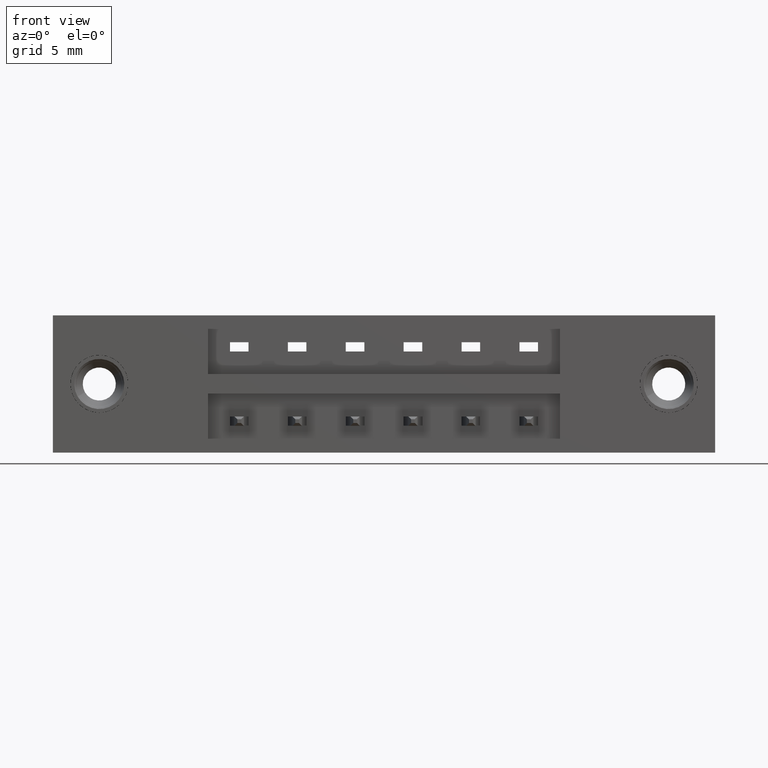
[diagram: clean part render]
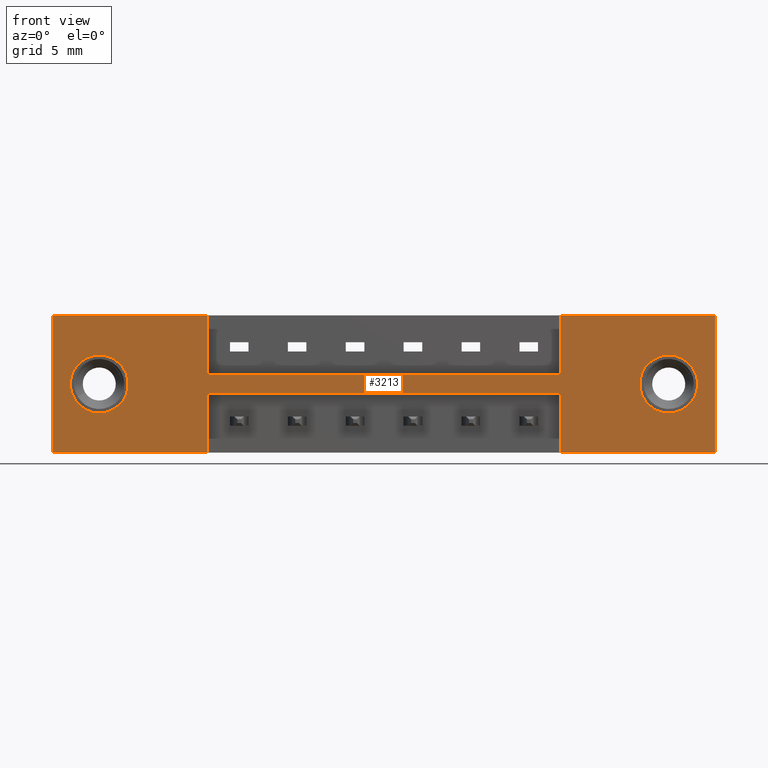
[diagram: same view with one face highlighted and labeled with its STEP entity id]
A machine part, front view. The second image highlights one B-rep face of the part: STEP entity #3213.
In plain terms, the highlighted planar face has unit normal (0, -1, 0).
Its self-contained STEP definition (entity closure, byte-faithful):
#3 = VERTEX_POINT ( 'NONE', #5428 ) ;
#110 = DIRECTION ( 'NONE',  ( -0.0000000000000000000, -0.0000000000000000000, -1.000000000000000000 ) ) ;
#320 = EDGE_LOOP ( 'NONE', ( #9035, #9163 ) ) ;
#383 = CIRCLE ( 'NONE', #9207, 0.07800000000000001400 ) ;
#430 = CIRCLE ( 'NONE', #7148, 0.07800000000000009700 ) ;
#486 = VECTOR ( 'NONE', #527, 39.37007874015748100 ) ;
#527 = DIRECTION ( 'NONE',  ( 1.000000000000000000, 0.0000000000000000000, 0.0000000000000000000 ) ) ;
#632 = VERTEX_POINT ( 'NONE', #3649 ) ;
#641 = EDGE_CURVE ( 'NONE', #7137, #4491, #4251, .T. ) ;
#644 = DIRECTION ( 'NONE',  ( 1.000000000000000000, 0.0000000000000000000, 0.0000000000000000000 ) ) ;
#824 = ORIENTED_EDGE ( 'NONE', *, *, #2777, .F. ) ;
#831 = ORIENTED_EDGE ( 'NONE', *, *, #4075, .F. ) ;
#845 = DIRECTION ( 'NONE',  ( -1.000000000000000000, -0.0000000000000000000, -0.0000000000000000000 ) ) ;
#888 = EDGE_CURVE ( 'NONE', #3, #2256, #3888, .T. ) ;
#891 = CARTESIAN_POINT ( 'NONE',  ( 0.4174999999999999800, 0.0000000000000000000, -0.1585000000000000300 ) ) ;
#898 = LINE ( 'NONE', #5798, #4622 ) ;
#905 = DIRECTION ( 'NONE',  ( -0.0000000000000000000, -0.0000000000000000000, 1.000000000000000000 ) ) ;
#1065 = EDGE_CURVE ( 'NONE', #8828, #2219, #4478, .T. ) ;
#1244 = CARTESIAN_POINT ( 'NONE',  ( 1.366499999999999800, 0.0000000000000000000, -0.2114999999999999900 ) ) ;
#1262 = ORIENTED_EDGE ( 'NONE', *, *, #3703, .F. ) ;
#1265 = CARTESIAN_POINT ( 'NONE',  ( 0.0000000000000000000, 0.0000000000000000000, 0.0000000000000000000 ) ) ;
#1443 = CARTESIAN_POINT ( 'NONE',  ( 0.4174999999999997000, 0.0000000000000000000, -0.2114999999999999900 ) ) ;
#1501 = CARTESIAN_POINT ( 'NONE',  ( 0.4174999999999997000, 0.0000000000000000000, -0.3700000000000000000 ) ) ;
#1567 = CARTESIAN_POINT ( 'NONE',  ( 1.366499999999999800, 0.0000000000000000000, -0.1585000000000000300 ) ) ;
#1628 = DIRECTION ( 'NONE',  ( -1.000000000000000000, -0.0000000000000000000, -0.0000000000000000000 ) ) ;
#1656 = CARTESIAN_POINT ( 'NONE',  ( 1.366499999999999800, 0.0000000000000000000, -0.1585000000000000300 ) ) ;
#1794 = LINE ( 'NONE', #3901, #3500 ) ;
#1806 = FACE_BOUND ( 'NONE', #320, .T. ) ;
#1818 = CARTESIAN_POINT ( 'NONE',  ( 0.1250000000000001900, 0.0000000000000000000, -0.1849999999999987200 ) ) ;
#1871 = VECTOR ( 'NONE', #845, 39.37007874015748100 ) ;
#1917 = DIRECTION ( 'NONE',  ( 0.0000000000000000000, -0.0000000000000000000, -1.000000000000000000 ) ) ;
#2117 = CARTESIAN_POINT ( 'NONE',  ( 0.0000000000000000000, 0.0000000000000000000, -0.3700000000000000000 ) ) ;
#2123 = EDGE_CURVE ( 'NONE', #6392, #4271, #383, .T. ) ;
#2219 = VERTEX_POINT ( 'NONE', #2734 ) ;
#2233 = VECTOR ( 'NONE', #4876, 39.37007874015748100 ) ;
#2245 = EDGE_CURVE ( 'NONE', #4491, #5558, #7061, .T. ) ;
#2256 = VERTEX_POINT ( 'NONE', #4129 ) ;
#2357 = LINE ( 'NONE', #5850, #7959 ) ;
#2489 = VECTOR ( 'NONE', #4100, 39.37007874015748100 ) ;
#2546 = ORIENTED_EDGE ( 'NONE', *, *, #8137, .F. ) ;
#2586 = CARTESIAN_POINT ( 'NONE',  ( 1.366499999999999800, 0.0000000000000000000, -0.2114999999999999900 ) ) ;
#2610 = EDGE_CURVE ( 'NONE', #5558, #6348, #6078, .T. ) ;
#2734 = CARTESIAN_POINT ( 'NONE',  ( 0.0000000000000000000, 0.0000000000000000000, 0.0000000000000000000 ) ) ;
#2777 = EDGE_CURVE ( 'NONE', #2219, #632, #4468, .T. ) ;
#2808 = ORIENTED_EDGE ( 'NONE', *, *, #1065, .F. ) ;
#2862 = ORIENTED_EDGE ( 'NONE', *, *, #888, .T. ) ;
#2949 = DIRECTION ( 'NONE',  ( 0.0000000000000000000, 1.000000000000000000, -0.0000000000000000000 ) ) ;
#2995 = CARTESIAN_POINT ( 'NONE',  ( 1.784000000000000500, 0.0000000000000000000, -0.3700000000000000000 ) ) ;
#3188 = VERTEX_POINT ( 'NONE', #7728 ) ;
#3213 = ADVANCED_FACE ( 'NONE', ( #5722, #1806, #7396 ), #5597, .T. ) ;
#3260 = CARTESIAN_POINT ( 'NONE',  ( 1.659000000000001100, 0.0000000000000000000, -0.1850000000000002200 ) ) ;
#3477 = VECTOR ( 'NONE', #9317, 39.37007874015748100 ) ;
#3500 = VECTOR ( 'NONE', #110, 39.37007874015748100 ) ;
#3530 = DIRECTION ( 'NONE',  ( 0.0000000000000000000, 1.000000000000000000, 0.0000000000000000000 ) ) ;
#3641 = VECTOR ( 'NONE', #6804, 39.37007874015748100 ) ;
#3649 = CARTESIAN_POINT ( 'NONE',  ( 0.4174999999999998700, 0.0000000000000000000, 0.0000000000000000000 ) ) ;
#3703 = EDGE_CURVE ( 'NONE', #632, #5466, #1794, .T. ) ;
#3888 = CIRCLE ( 'NONE', #7486, 0.07800000000000009700 ) ;
#3901 = CARTESIAN_POINT ( 'NONE',  ( 0.4174999999999999800, 0.0000000000000000000, -0.1585000000000000300 ) ) ;
#3933 = ORIENTED_EDGE ( 'NONE', *, *, #7274, .T. ) ;
#4016 = DIRECTION ( 'NONE',  ( 0.0000000000000000000, 0.0000000000000000000, -1.000000000000000000 ) ) ;
#4075 = EDGE_CURVE ( 'NONE', #5466, #7662, #2357, .T. ) ;
#4100 = DIRECTION ( 'NONE',  ( -0.0000000000000000000, -0.0000000000000000000, 1.000000000000000000 ) ) ;
#4107 = CARTESIAN_POINT ( 'NONE',  ( 0.0000000000000000000, 0.0000000000000000000, -0.3700000000000000000 ) ) ;
#4129 = CARTESIAN_POINT ( 'NONE',  ( 1.659000000000001100, 0.0000000000000000000, -0.2630000000000002900 ) ) ;
#4251 = LINE ( 'NONE', #2586, #5984 ) ;
#4271 = VERTEX_POINT ( 'NONE', #6741 ) ;
#4303 = CARTESIAN_POINT ( 'NONE',  ( 0.4174999999999997000, 0.0000000000000000000, -0.2114999999999999900 ) ) ;
#4411 = EDGE_CURVE ( 'NONE', #7015, #7137, #6596, .T. ) ;
#4468 = LINE ( 'NONE', #1265, #486 ) ;
#4478 = LINE ( 'NONE', #5730, #2489 ) ;
#4491 = VERTEX_POINT ( 'NONE', #1244 ) ;
#4606 = ORIENTED_EDGE ( 'NONE', *, *, #4411, .F. ) ;
#4622 = VECTOR ( 'NONE', #6490, 39.37007874015748100 ) ;
#4876 = DIRECTION ( 'NONE',  ( -1.000000000000000000, -0.0000000000000000000, -0.0000000000000000000 ) ) ;
#4889 = ORIENTED_EDGE ( 'NONE', *, *, #641, .F. ) ;
#5428 = CARTESIAN_POINT ( 'NONE',  ( 1.659000000000001100, 0.0000000000000000000, -0.1070000000000001400 ) ) ;
#5466 = VERTEX_POINT ( 'NONE', #891 ) ;
#5519 = ORIENTED_EDGE ( 'NONE', *, *, #5826, .F. ) ;
#5539 = CARTESIAN_POINT ( 'NONE',  ( 1.659000000000001100, 0.0000000000000000000, -0.1850000000000002200 ) ) ;
#5558 = VERTEX_POINT ( 'NONE', #8307 ) ;
#5597 = PLANE ( 'NONE',  #7984 ) ;
#5722 = FACE_BOUND ( 'NONE', #8504, .T. ) ;
#5730 = CARTESIAN_POINT ( 'NONE',  ( 0.0000000000000000000, 0.0000000000000000000, 0.0000000000000000000 ) ) ;
#5798 = CARTESIAN_POINT ( 'NONE',  ( 1.784000000000000500, 0.0000000000000000000, 0.0000000000000000000 ) ) ;
#5826 = EDGE_CURVE ( 'NONE', #6077, #3188, #9305, .T. ) ;
#5850 = CARTESIAN_POINT ( 'NONE',  ( 0.4174999999999999800, 0.0000000000000000000, -0.1585000000000000300 ) ) ;
#5923 = AXIS2_PLACEMENT_3D ( 'NONE', #7906, #3530, #8658 ) ;
#5984 = VECTOR ( 'NONE', #905, 39.37007874015748100 ) ;
#6016 = CIRCLE ( 'NONE', #5923, 0.07800000000000001400 ) ;
#6077 = VERTEX_POINT ( 'NONE', #9038 ) ;
#6078 = LINE ( 'NONE', #1443, #3641 ) ;
#6095 = ORIENTED_EDGE ( 'NONE', *, *, #7090, .F. ) ;
#6313 = DIRECTION ( 'NONE',  ( 0.0000000000000000000, -1.000000000000000000, 0.0000000000000000000 ) ) ;
#6348 = VERTEX_POINT ( 'NONE', #1501 ) ;
#6384 = ORIENTED_EDGE ( 'NONE', *, *, #8350, .F. ) ;
#6392 = VERTEX_POINT ( 'NONE', #8095 ) ;
#6487 = ORIENTED_EDGE ( 'NONE', *, *, #2245, .F. ) ;
#6490 = DIRECTION ( 'NONE',  ( 0.0000000000000000000, 0.0000000000000000000, -1.000000000000000000 ) ) ;
#6596 = LINE ( 'NONE', #9216, #2233 ) ;
#6680 = DIRECTION ( 'NONE',  ( 0.0000000000000000000, 0.0000000000000000000, -1.000000000000000000 ) ) ;
#6739 = CARTESIAN_POINT ( 'NONE',  ( 1.366499999999999800, 0.0000000000000000000, -0.3700000000000000000 ) ) ;
#6741 = CARTESIAN_POINT ( 'NONE',  ( 0.1250000000000001900, 0.0000000000000000000, -0.2629999999999987300 ) ) ;
#6748 = DIRECTION ( 'NONE',  ( 0.0000000000000000000, 0.0000000000000000000, 1.000000000000000000 ) ) ;
#6804 = DIRECTION ( 'NONE',  ( 0.0000000000000000000, 0.0000000000000000000, -1.000000000000000000 ) ) ;
#6809 = DIRECTION ( 'NONE',  ( 0.0000000000000000000, 0.0000000000000000000, 1.000000000000000000 ) ) ;
#6824 = EDGE_CURVE ( 'NONE', #4271, #6392, #6016, .T. ) ;
#6852 = VECTOR ( 'NONE', #6748, 39.37007874015748100 ) ;
#7015 = VERTEX_POINT ( 'NONE', #2995 ) ;
#7061 = LINE ( 'NONE', #4303, #8795 ) ;
#7090 = EDGE_CURVE ( 'NONE', #6348, #8828, #7690, .T. ) ;
#7137 = VERTEX_POINT ( 'NONE', #6739 ) ;
#7148 = AXIS2_PLACEMENT_3D ( 'NONE', #3260, #8395, #4016 ) ;
#7265 = DIRECTION ( 'NONE',  ( 0.0000000000000000000, 1.000000000000000000, 0.0000000000000000000 ) ) ;
#7274 = EDGE_CURVE ( 'NONE', #2256, #3, #430, .T. ) ;
#7396 = FACE_OUTER_BOUND ( 'NONE', #8879, .T. ) ;
#7486 = AXIS2_PLACEMENT_3D ( 'NONE', #5539, #2949, #6680 ) ;
#7662 = VERTEX_POINT ( 'NONE', #1567 ) ;
#7690 = LINE ( 'NONE', #8893, #1871 ) ;
#7728 = CARTESIAN_POINT ( 'NONE',  ( 1.784000000000000500, 0.0000000000000000000, 0.0000000000000000000 ) ) ;
#7906 = CARTESIAN_POINT ( 'NONE',  ( 0.1250000000000001900, 0.0000000000000000000, -0.1849999999999987200 ) ) ;
#7959 = VECTOR ( 'NONE', #644, 39.37007874015748100 ) ;
#7984 = AXIS2_PLACEMENT_3D ( 'NONE', #4107, #6313, #1917 ) ;
#8095 = CARTESIAN_POINT ( 'NONE',  ( 0.1250000000000001900, 0.0000000000000000000, -0.1069999999999986900 ) ) ;
#8137 = EDGE_CURVE ( 'NONE', #3188, #7015, #898, .T. ) ;
#8307 = CARTESIAN_POINT ( 'NONE',  ( 0.4174999999999997000, 0.0000000000000000000, -0.2114999999999999900 ) ) ;
#8350 = EDGE_CURVE ( 'NONE', #7662, #6077, #8600, .T. ) ;
#8395 = DIRECTION ( 'NONE',  ( 0.0000000000000000000, 1.000000000000000000, -0.0000000000000000000 ) ) ;
#8504 = EDGE_LOOP ( 'NONE', ( #2862, #3933 ) ) ;
#8600 = LINE ( 'NONE', #1656, #6852 ) ;
#8601 = CARTESIAN_POINT ( 'NONE',  ( 0.0000000000000000000, 0.0000000000000000000, 0.0000000000000000000 ) ) ;
#8658 = DIRECTION ( 'NONE',  ( 0.0000000000000000000, 0.0000000000000000000, 1.000000000000000000 ) ) ;
#8795 = VECTOR ( 'NONE', #1628, 39.37007874015748100 ) ;
#8828 = VERTEX_POINT ( 'NONE', #2117 ) ;
#8879 = EDGE_LOOP ( 'NONE', ( #4889, #4606, #2546, #5519, #6384, #831, #1262, #824, #2808, #6095, #9060, #6487 ) ) ;
#8893 = CARTESIAN_POINT ( 'NONE',  ( 0.0000000000000000000, 0.0000000000000000000, -0.3700000000000000000 ) ) ;
#9035 = ORIENTED_EDGE ( 'NONE', *, *, #2123, .T. ) ;
#9038 = CARTESIAN_POINT ( 'NONE',  ( 1.366499999999999800, 0.0000000000000000000, 0.0000000000000000000 ) ) ;
#9060 = ORIENTED_EDGE ( 'NONE', *, *, #2610, .F. ) ;
#9163 = ORIENTED_EDGE ( 'NONE', *, *, #6824, .T. ) ;
#9207 = AXIS2_PLACEMENT_3D ( 'NONE', #1818, #7265, #6809 ) ;
#9216 = CARTESIAN_POINT ( 'NONE',  ( 0.0000000000000000000, 0.0000000000000000000, -0.3700000000000000000 ) ) ;
#9305 = LINE ( 'NONE', #8601, #3477 ) ;
#9317 = DIRECTION ( 'NONE',  ( 1.000000000000000000, 0.0000000000000000000, 0.0000000000000000000 ) ) ;